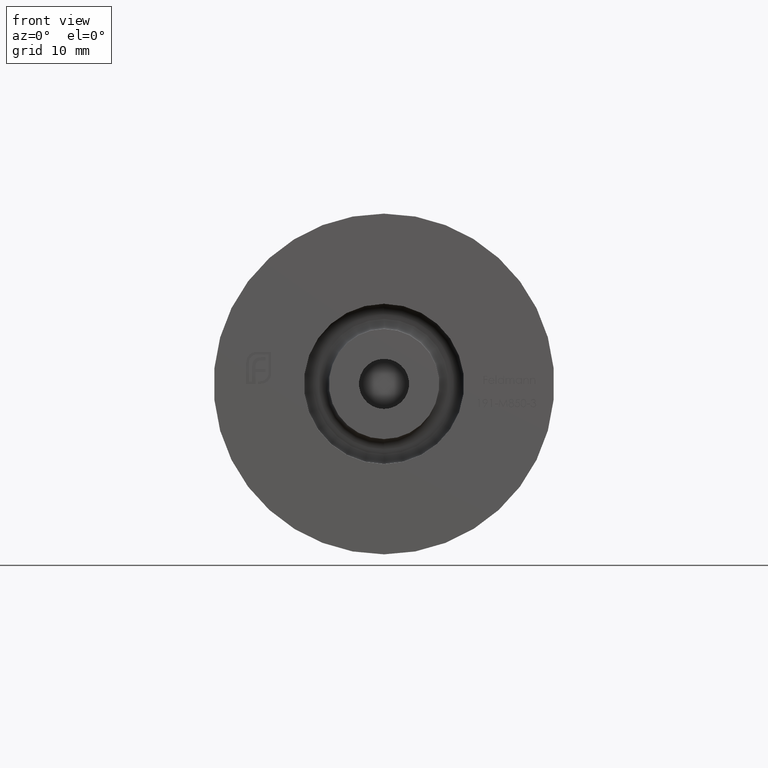
[diagram: clean part render]
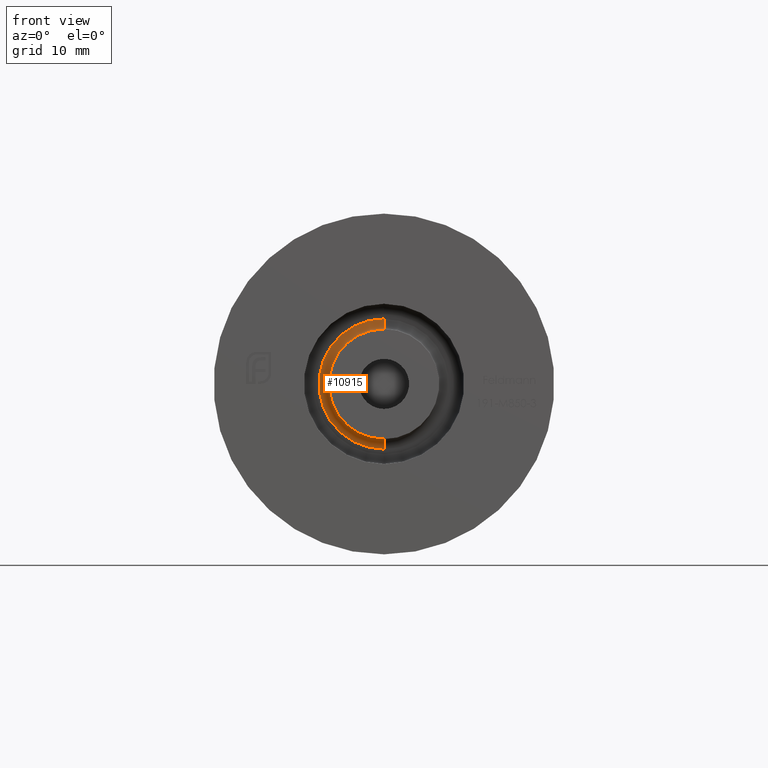
[diagram: same view with one face highlighted and labeled with its STEP entity id]
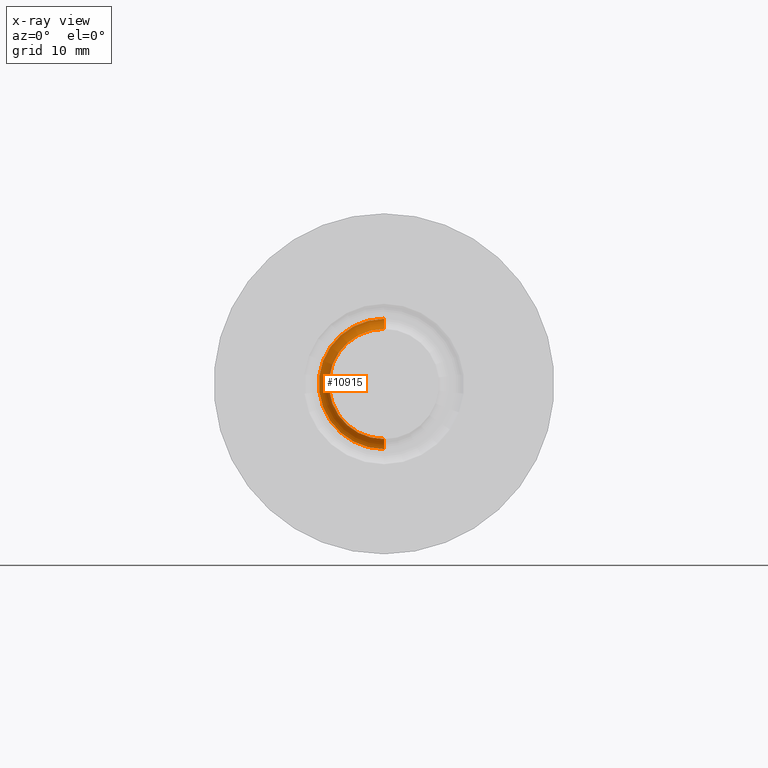
[diagram: x-ray of the same camera — body ghosted, the highlighted face saturated]
A machine part, front view. The second image highlights one B-rep face of the part: STEP entity #10915.
The next image is the same camera in x-ray: the body ghosted, the highlighted face saturated — about 0% of this face is hidden behind the body in this view.
In plain terms, the highlighted toroidal blend (fillet) surface has major radius 6.5 mm and minor (blend) radius 1 mm.
Its self-contained STEP definition (entity closure, byte-faithful):
#201 = DIRECTION ( 'NONE',  ( -1.000000000000000000, -0.000000000000000000, -0.000000000000000000 ) ) ;
#207 = DIRECTION ( 'NONE',  ( -0.000000000000000000, 1.000000000000000000, -0.000000000000000000 ) ) ;
#398 = CARTESIAN_POINT ( 'NONE',  ( 0.000000000000000000, 3.000000000000000000, 0.000000000000000000 ) ) ;
#890 = DIRECTION ( 'NONE',  ( 0.000000000000000000, 0.000000000000000000, -1.000000000000000000 ) ) ;
#938 = EDGE_CURVE ( 'NONE', #3861, #3138, #2557, .T. ) ;
#1015 = TOROIDAL_SURFACE ( 'NONE', #11990, 6.500000000000000000, 1.000000000000000000 ) ;
#1222 = AXIS2_PLACEMENT_3D ( 'NONE', #5917, #201, #1355 ) ;
#1272 = EDGE_CURVE ( 'NONE', #2213, #10649, #8813, .T. ) ;
#1355 = DIRECTION ( 'NONE',  ( 0.000000000000000000, 0.000000000000000000, 1.000000000000000000 ) ) ;
#2213 = VERTEX_POINT ( 'NONE', #2421 ) ;
#2421 = CARTESIAN_POINT ( 'NONE',  ( 0.000000000000000000, 2.000000000000001776, 5.500000000000000000 ) ) ;
#2557 = CIRCLE ( 'NONE', #8823, 6.500000000000000000 ) ;
#3138 = VERTEX_POINT ( 'NONE', #3769 ) ;
#3347 = CARTESIAN_POINT ( 'NONE',  ( 0.000000000000000000, 2.000000000000001776, 0.000000000000000000 ) ) ;
#3364 = CIRCLE ( 'NONE', #7122, 1.000000000000000000 ) ;
#3606 = EDGE_CURVE ( 'NONE', #10649, #3861, #5676, .T. ) ;
#3769 = CARTESIAN_POINT ( 'NONE',  ( 7.960204194457795477E-16, 3.000000000000000888, 6.500000000000000000 ) ) ;
#3861 = VERTEX_POINT ( 'NONE', #4742 ) ;
#4742 = CARTESIAN_POINT ( 'NONE',  ( 0.000000000000000000, 3.000000000000000888, -6.500000000000000000 ) ) ;
#5248 = ORIENTED_EDGE ( 'NONE', *, *, #1272, .F. ) ;
#5250 = DIRECTION ( 'NONE',  ( 0.000000000000000000, 0.000000000000000000, -1.000000000000000000 ) ) ;
#5676 = CIRCLE ( 'NONE', #1222, 1.000000000000000000 ) ;
#5917 = CARTESIAN_POINT ( 'NONE',  ( 0.000000000000000000, 2.000000000000001776, -6.500000000000000000 ) ) ;
#6340 = DIRECTION ( 'NONE',  ( 0.000000000000000000, 0.000000000000000000, -1.000000000000000000 ) ) ;
#6409 = EDGE_CURVE ( 'NONE', #2213, #3138, #3364, .T. ) ;
#6489 = CARTESIAN_POINT ( 'NONE',  ( 6.735557395310442023E-16, 2.000000000000001776, -5.500000000000000000 ) ) ;
#7122 = AXIS2_PLACEMENT_3D ( 'NONE', #7945, #12649, #15085 ) ;
#7945 = CARTESIAN_POINT ( 'NONE',  ( 7.960204194457795477E-16, 2.000000000000001776, 6.500000000000000000 ) ) ;
#8159 = DIRECTION ( 'NONE',  ( 0.000000000000000000, -1.000000000000000000, 0.000000000000000000 ) ) ;
#8520 = AXIS2_PLACEMENT_3D ( 'NONE', #3347, #8159, #890 ) ;
#8672 = ORIENTED_EDGE ( 'NONE', *, *, #6409, .T. ) ;
#8813 = CIRCLE ( 'NONE', #8520, 5.500000000000000000 ) ;
#8823 = AXIS2_PLACEMENT_3D ( 'NONE', #398, #207, #6340 ) ;
#10283 = EDGE_LOOP ( 'NONE', ( #5248, #8672, #13122, #14196 ) ) ;
#10649 = VERTEX_POINT ( 'NONE', #6489 ) ;
#10915 = ADVANCED_FACE ( 'NONE', ( #15036 ), #1015, .F. ) ;
#11321 = CARTESIAN_POINT ( 'NONE',  ( 0.000000000000000000, 2.000000000000001776, 0.000000000000000000 ) ) ;
#11990 = AXIS2_PLACEMENT_3D ( 'NONE', #11321, #12432, #5250 ) ;
#12432 = DIRECTION ( 'NONE',  ( 0.000000000000000000, -1.000000000000000000, 0.000000000000000000 ) ) ;
#12649 = DIRECTION ( 'NONE',  ( 1.000000000000000000, 0.000000000000000000, -1.224646799147353207E-16 ) ) ;
#13122 = ORIENTED_EDGE ( 'NONE', *, *, #938, .F. ) ;
#14196 = ORIENTED_EDGE ( 'NONE', *, *, #3606, .F. ) ;
#15036 = FACE_OUTER_BOUND ( 'NONE', #10283, .T. ) ;
#15085 = DIRECTION ( 'NONE',  ( -1.224646799147353454E-16, 0.000000000000000000, -1.000000000000000000 ) ) ;